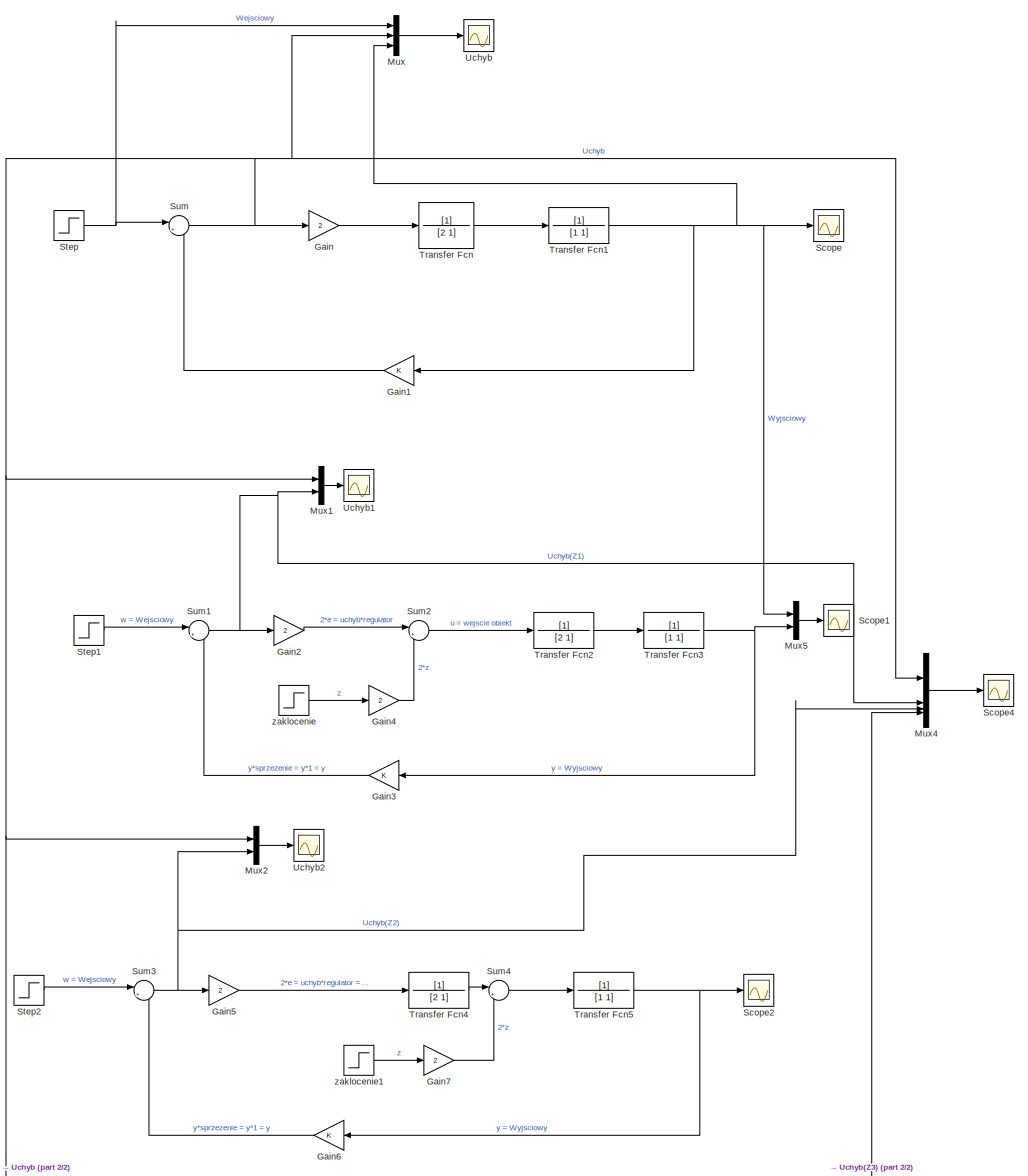
[diagram: root canvas - part 1/2, full width, middle band]
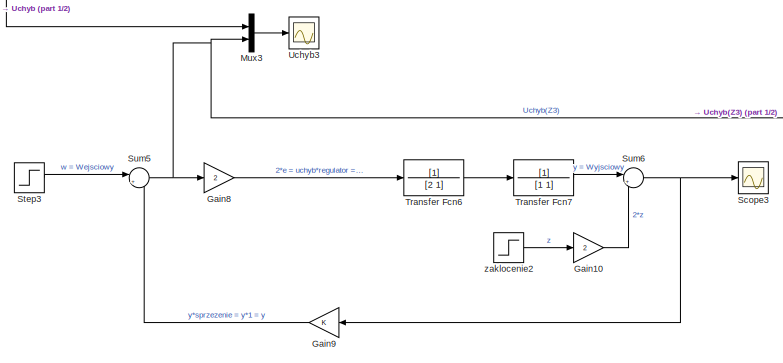
[diagram: root canvas - part 2/2, full width, bottom band]
MODEL slx_6e5b739444d1
KIND model
CONFIG AbsTol = auto
CONFIG EnableMultiTasking = off
CONFIG FixedStep = auto
CONFIG MaxStep = auto
CONFIG MinStep = auto
CONFIG RelTol = 1e-3
CONFIG SampleTimeConstraint = Unconstrained
CONFIG SolverName = VariableStepAuto
CONFIG StartTime = 0.0
CONFIG StopTime = 20
BLOCK [Gain] Gain
  Gain = 2
BLOCK [Gain] Gain1
BLOCK [Gain] Gain10
  Gain = 2
BLOCK [Gain] Gain2
  Gain = 2
BLOCK [Gain] Gain3
BLOCK [Gain] Gain4
  Gain = 2
BLOCK [Gain] Gain5
  Gain = 2
BLOCK [Gain] Gain6
BLOCK [Gain] Gain7
  Gain = 2
BLOCK [Gain] Gain8
  Gain = 2
BLOCK [Gain] Gain9
BLOCK [Mux] Mux
  DisplayOption = bar
  Inputs = 3
BLOCK [Mux] Mux1
  DisplayOption = bar
  Inputs = 2
BLOCK [Mux] Mux2
  DisplayOption = bar
  Inputs = 2
BLOCK [Mux] Mux3
  DisplayOption = bar
  Inputs = 2
BLOCK [Mux] Mux4
  DisplayOption = bar
BLOCK [Mux] Mux5
  DisplayOption = bar
  Inputs = 2
BLOCK [Scope] Scope
  ActiveDisplayYMaximum = 0.77577049871628523
  ActiveDisplayYMinimum = -0.06502980968093075
  Floating = off
  GraphicalSettings = {"Style":{"BackgroundColor":[0.12941176470588237,0.12941176470588237,0.12941176470588237],"AxesColor":[0.07058823529411765,0.07058823529411765,0.07058823529411765],"LabelsColor":[0.8509803921568627,0.8509803921568627,0.8509803921568627],"PreserveColors":false,"Visible":[true],"LineStyle":["-"],"LineWidth":[1.5],"BarWidth":[0.9],"LineColor":["auto"],"LineFaceAlpha":[1],"LineEdgeAlpha":[1],"Marker":...<+2520ch>
  MultipleDisplayCache = [{"MaxYLimMag":0.80091749299583448,"MaxYLimReal":0.77577049871628523,"MinYLimMag":0.038286827782939931,"MinYLimReal":-0.06502980968093075,"PlotAsMagnitudePhase":false,"ShowGrid":true,"ShowLegend":true,"Title":"%<SignalLabel>","YLabel":""}]
  NumInputPorts = 1
  ScopeFrameLocation = window
  ShowLegend = on
  WasSavedAsWebScope = on
  WindowPosition = [168.000000,118.000000,1669.000000,866.000000,]
BLOCK [Scope] Scope1
  ActiveDisplayYMaximum = 2.011000432811886
  ActiveDisplayYMinimum = -0.023285806575956025
  DataLoggingVariableName = ScopeData2
  Floating = off
  GraphicalSettings = {"Style":{"BackgroundColor":[0.12941176470588237,0.12941176470588237,0.12941176470588237],"AxesColor":[0.07058823529411765,0.07058823529411765,0.07058823529411765],"LabelsColor":[0.8509803921568627,0.8509803921568627,0.8509803921568627],"PreserveColors":false,"Visible":[true,true],"LineStyle":["-","-"],"LineWidth":[1.5,1.5],"BarWidth":[0.9,0.9],"LineColor":["auto","auto"],"LineFaceAlpha":[1,1],"Li...<+2645ch>
  MultipleDisplayCache = [{"MaxYLimMag":1.7018292486857325,"MaxYLimReal":2.011000432811886,"MinYLimMag":0,"MinYLimReal":-0.023285806575956025,"PlotAsMagnitudePhase":false,"ShowGrid":true,"ShowLegend":true,"Title":"%<SignalLabel>","YLabel":""}]
  NumInputPorts = 1
  ScopeFrameLocation = window
  ShowLegend = on
  WasSavedAsWebScope = on
  WindowPosition = [193.000000,216.000000,1432.000000,754.000000,]
BLOCK [Scope] Scope2
  ActiveDisplayYMaximum = 2.237719338068338
  ActiveDisplayYMinimum = -0.48841878311873588
  DataLoggingVariableName = ScopeData4
  Floating = off
  GraphicalSettings = {"Style":{"BackgroundColor":[0.12941176470588237,0.12941176470588237,0.12941176470588237],"AxesColor":[0.07058823529411765,0.07058823529411765,0.07058823529411765],"LabelsColor":[0.8509803921568627,0.8509803921568627,0.8509803921568627],"PreserveColors":false,"Visible":[true],"LineStyle":["-"],"LineWidth":[1.5],"BarWidth":[0.9],"LineColor":["auto"],"LineFaceAlpha":[1],"LineEdgeAlpha":[1],"Marker":...<+2521ch>
  MultipleDisplayCache = [{"MaxYLimMag":1.7018292486857325,"MaxYLimReal":2.237719338068338,"MinYLimMag":0,"MinYLimReal":-0.48841878311873588,"PlotAsMagnitudePhase":false,"ShowGrid":true,"ShowLegend":true,"Title":"%<SignalLabel>","YLabel":""}]
  NumInputPorts = 1
  ScopeFrameLocation = window
  ShowLegend = on
  WasSavedAsWebScope = on
  WindowPosition = [225.000000,244.000000,1432.000000,771.000000,]
BLOCK [Scope] Scope3
  ActiveDisplayYMaximum = 2.3886670662696021
  ActiveDisplayYMinimum = -0.61690021233914671
  DataLoggingVariableName = ScopeData6
  Floating = off
  GraphicalSettings = {"Style":{"BackgroundColor":[0.12941176470588237,0.12941176470588237,0.12941176470588237],"AxesColor":[0.07058823529411765,0.07058823529411765,0.07058823529411765],"LabelsColor":[0.8509803921568627,0.8509803921568627,0.8509803921568627],"PreserveColors":false,"Visible":[true],"LineStyle":["-"],"LineWidth":[1.5],"BarWidth":[0.9],"LineColor":["auto"],"LineFaceAlpha":[1],"LineEdgeAlpha":[1],"Marker":...<+2503ch>
  MultipleDisplayCache = [{"MaxYLimMag":1.7018292486857325,"MaxYLimReal":2.3886670662696021,"MinYLimMag":0,"MinYLimReal":-0.61690021233914671,"PlotAsMagnitudePhase":false,"ShowGrid":true,"ShowLegend":true,"Title":"%<SignalLabel>","YLabel":""}]
  NumInputPorts = 1
  ScopeFrameLocation = window
  ShowLegend = on
  WasSavedAsWebScope = on
  WindowPosition = [240.000000,169.000000,1432.000000,771.000000,]
BLOCK [Scope] Scope4
  ActiveDisplayYMaximum = 1.25
  ActiveDisplayYMinimum = -1.25
  DataLoggingVariableName = ScopeData8
  Floating = off
  GraphicalSettings = {"Style":{"BackgroundColor":[0.12941176470588237,0.12941176470588237,0.12941176470588237],"AxesColor":[0.07058823529411765,0.07058823529411765,0.07058823529411765],"LabelsColor":[0.8509803921568627,0.8509803921568627,0.8509803921568627],"PreserveColors":false,"Visible":[true,true,true,true],"LineStyle":["-","-","-","-"],"LineWidth":[1.5,1.5,1.5,1.5],"BarWidth":[0.9,0.9,0.9,0.9],"LineColor":["auto"...<+2782ch>
  MultipleDisplayCache = [{"MaxYLimMag":1.25,"MaxYLimReal":1.25,"MinYLimMag":0,"MinYLimReal":-1.25,"PlotAsMagnitudePhase":false,"ShowGrid":true,"ShowLegend":true,"Title":"%<SignalLabel>","YLabel":""}]
  NumInputPorts = 1
  ScopeFrameLocation = window
  ShowLegend = on
  WasSavedAsWebScope = on
  WindowPosition = [158.000000,87.000000,1620.000000,962.000000,]
BLOCK [Step] Step
  SampleTime = 0
  Time = 0
BLOCK [Step] Step1
  SampleTime = 0
  Time = 0
BLOCK [Step] Step2
  SampleTime = 0
  Time = 0
BLOCK [Step] Step3
  SampleTime = 0
  Time = 0
BLOCK [Sum] Sum
  Inputs = |+-
BLOCK [Sum] Sum1
  Inputs = |+-
BLOCK [Sum] Sum2
  Inputs = |++
BLOCK [Sum] Sum3
  Inputs = |+-
BLOCK [Sum] Sum4
  Inputs = |++
BLOCK [Sum] Sum5
  Inputs = |+-
BLOCK [Sum] Sum6
  Inputs = |++
BLOCK [TransferFcn] Transfer Fcn
  Denominator = [2 1]
BLOCK [TransferFcn] Transfer Fcn1
  Denominator = [1 1]
BLOCK [TransferFcn] Transfer Fcn2
  Denominator = [2 1]
BLOCK [TransferFcn] Transfer Fcn3
  Denominator = [1 1]
BLOCK [TransferFcn] Transfer Fcn4
  Denominator = [2 1]
BLOCK [TransferFcn] Transfer Fcn5
  Denominator = [1 1]
BLOCK [TransferFcn] Transfer Fcn6
  Denominator = [2 1]
BLOCK [TransferFcn] Transfer Fcn7
  Denominator = [1 1]
BLOCK [Scope] Uchyb
  ActiveDisplayYMaximum = 1.125
  ActiveDisplayYMinimum = -0.12499999999999997
  DataLoggingVariableName = ScopeData1
  Floating = off
  GraphicalSettings = {"Style":{"BackgroundColor":[0.12941176470588237,0.12941176470588237,0.12941176470588237],"AxesColor":[0.07058823529411765,0.07058823529411765,0.07058823529411765],"LabelsColor":[0.8509803921568627,0.8509803921568627,0.8509803921568627],"PreserveColors":false,"Visible":[true,true,true],"LineStyle":["-","-","-"],"LineWidth":[1.5,1.5,1.5],"BarWidth":[0.9,0.9,0.9],"LineColor":["auto","auto","auto"],"...<+2994ch>
  LayoutDimensionsString = [1,1]
  MultipleDisplayCache = [{"MaxYLimMag":1.125,"MaxYLimReal":1.125,"MinYLimMag":0,"MinYLimReal":-0.12499999999999997,"PlotAsMagnitudePhase":false,"ShowGrid":true,"ShowLegend":true,"Title":"%<SignalLabel>","YLabel":""}]
  NumInputPorts = 1
  ScopeFrameLocation = window
  ShowLegend = on
  WasSavedAsWebScope = on
  WindowPosition = [55.000000,75.000000,1750.000000,916.000000,]
BLOCK [Scope] Uchyb1
  ActiveDisplayYMaximum = 1.1809807711383256
  ActiveDisplayYMinimum = -0.62882694024493047
  DataLoggingVariableName = ScopeData3
  Floating = off
  GraphicalSettings = {"Style":{"BackgroundColor":[0.12941176470588237,0.12941176470588237,0.12941176470588237],"AxesColor":[0.07058823529411765,0.07058823529411765,0.07058823529411765],"LabelsColor":[0.8509803921568627,0.8509803921568627,0.8509803921568627],"PreserveColors":false,"Visible":[true,true],"LineStyle":["-","-"],"LineWidth":[1.5,1.5],"BarWidth":[0.9,0.9],"LineColor":["auto","auto"],"LineFaceAlpha":[1,1],"Li...<+2630ch>  <repeated x3 — deduplicated; at blocks: Uchyb1, Uchyb2, Uchyb3>
  MultipleDisplayCache = [{"MaxYLimMag":1.1809807711383256,"MaxYLimReal":1.1809807711383256,"MinYLimMag":0,"MinYLimReal":-0.62882694024493047,"PlotAsMagnitudePhase":false,"ShowGrid":true,"ShowLegend":true,"Title":"%<SignalLabel>","YLabel":""}]
  NumInputPorts = 1
  ScopeFrameLocation = window
  ShowLegend = on
  WasSavedAsWebScope = on
  WindowPosition = [285.000000,133.000000,1289.000000,916.000000,]
BLOCK [Scope] Uchyb2
  ActiveDisplayYMaximum = 1.1809807711383256
  ActiveDisplayYMinimum = -0.62882694024493047
  DataLoggingVariableName = ScopeData5
  Floating = off
  MultipleDisplayCache = [{"MaxYLimMag":1.1809807711383256,"MaxYLimReal":1.1809807711383256,"MinYLimMag":0,"MinYLimReal":-0.62882694024493047,"PlotAsMagnitudePhase":false,"ShowGrid":true,"ShowLegend":true,"Title":"%<SignalLabel>","YLabel":""}]
  NumInputPorts = 1
  ScopeFrameLocation = window
  ShowLegend = on
  WasSavedAsWebScope = on
  WindowPosition = [281.000000,53.000000,1289.000000,916.000000,]
BLOCK [Scope] Uchyb3
  ActiveDisplayYMaximum = 1.2874128671864817
  ActiveDisplayYMinimum = -0.70790013461355861
  DataLoggingVariableName = ScopeData7
  Floating = off
  MultipleDisplayCache = [{"MaxYLimMag":1.1809807711383256,"MaxYLimReal":1.2874128671864817,"MinYLimMag":0,"MinYLimReal":-0.70790013461355861,"PlotAsMagnitudePhase":false,"ShowGrid":true,"ShowLegend":true,"Title":"%<SignalLabel>","YLabel":""}]
  NumInputPorts = 1
  ScopeFrameLocation = window
  ShowLegend = on
  WasSavedAsWebScope = on
  WindowPosition = [347.000000,133.000000,1289.000000,916.000000,]
BLOCK [Step] zaklocenie
  SampleTime = 0
  Time = 0
BLOCK [Step] zaklocenie1
  SampleTime = 0
  Time = 0
BLOCK [Step] zaklocenie2
  SampleTime = 0
  Time = 0
LINE Gain10:1 -> Sum6:2
LINE Gain1:1 -> Sum:2
LINE Gain2:1 -> Sum2:1
LINE Gain3:1 -> Sum1:2
LINE Gain4:1 -> Sum2:2
LINE Gain5:1 -> Transfer Fcn4:1
LINE Gain6:1 -> Sum3:2
LINE Gain7:1 -> Sum4:2
LINE Gain8:1 -> Transfer Fcn6:1
LINE Gain9:1 -> Sum5:2
LINE Gain:1 -> Transfer Fcn:1
LINE Mux1:1 -> Uchyb1:1
LINE Mux2:1 -> Uchyb2:1
LINE Mux3:1 -> Uchyb3:1
LINE Mux4:1 -> Scope4:1
LINE Mux5:1 -> Scope1:1
LINE Mux:1 -> Uchyb:1
LINE Step1:1 -> Sum1:1
LINE Step2:1 -> Sum3:1
LINE Step3:1 -> Sum5:1
NET Step:1 -> Mux:1, Sum:1
NET Sum1:1 -> Gain2:1, Mux1:2, Mux4:2
LINE Sum2:1 -> Transfer Fcn2:1
NET Sum3:1 -> Gain5:1, Mux2:2, Mux4:3
LINE Sum4:1 -> Transfer Fcn5:1
NET Sum5:1 -> Gain8:1, Mux3:2, Mux4:4
NET Sum6:1 -> Gain9:1, Scope3:1
NET Sum:1 -> Gain:1, Mux1:1, Mux2:1, Mux3:1, Mux4:1, Mux:2
NET Transfer Fcn1:1 -> Gain1:1, Mux5:1, Mux:3, Scope:1
LINE Transfer Fcn2:1 -> Transfer Fcn3:1
NET Transfer Fcn3:1 -> Gain3:1, Mux5:2
LINE Transfer Fcn4:1 -> Sum4:1
NET Transfer Fcn5:1 -> Gain6:1, Scope2:1
LINE Transfer Fcn6:1 -> Transfer Fcn7:1
LINE Transfer Fcn7:1 -> Sum6:1
LINE Transfer Fcn:1 -> Transfer Fcn1:1
LINE zaklocenie1:1 -> Gain7:1
LINE zaklocenie2:1 -> Gain10:1
LINE zaklocenie:1 -> Gain4:1
note: NET lines group one-source signal fan-out (src -> all destinations, sorted); 1:1 wires keep LINE
